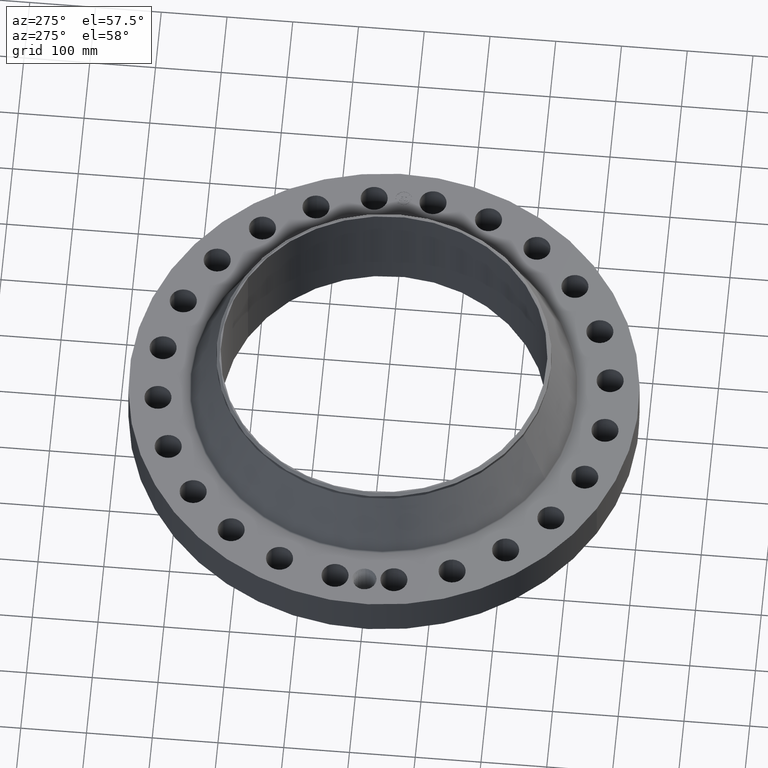
[diagram: clean part render]
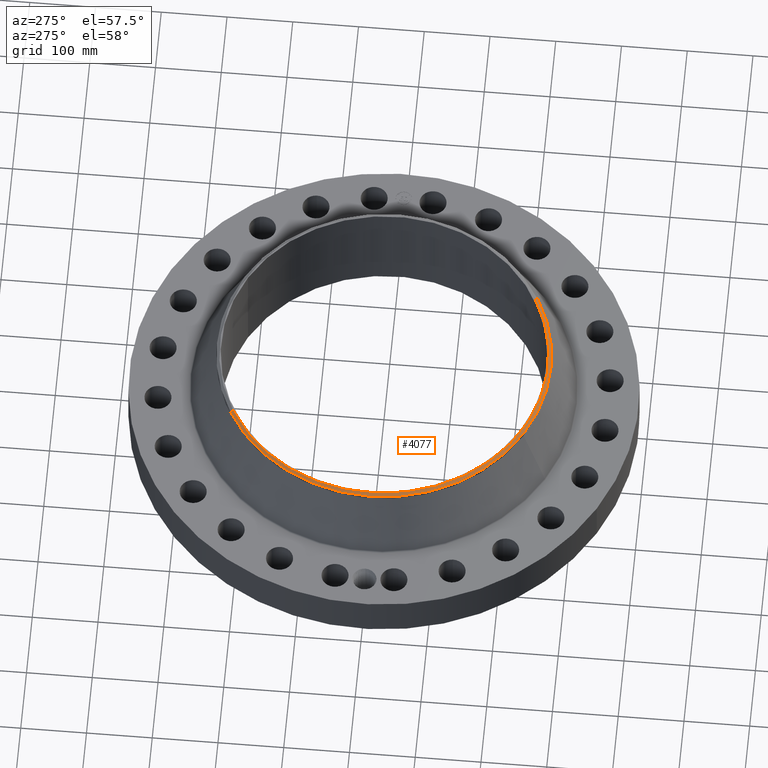
[diagram: same view with one face highlighted and labeled with its STEP entity id]
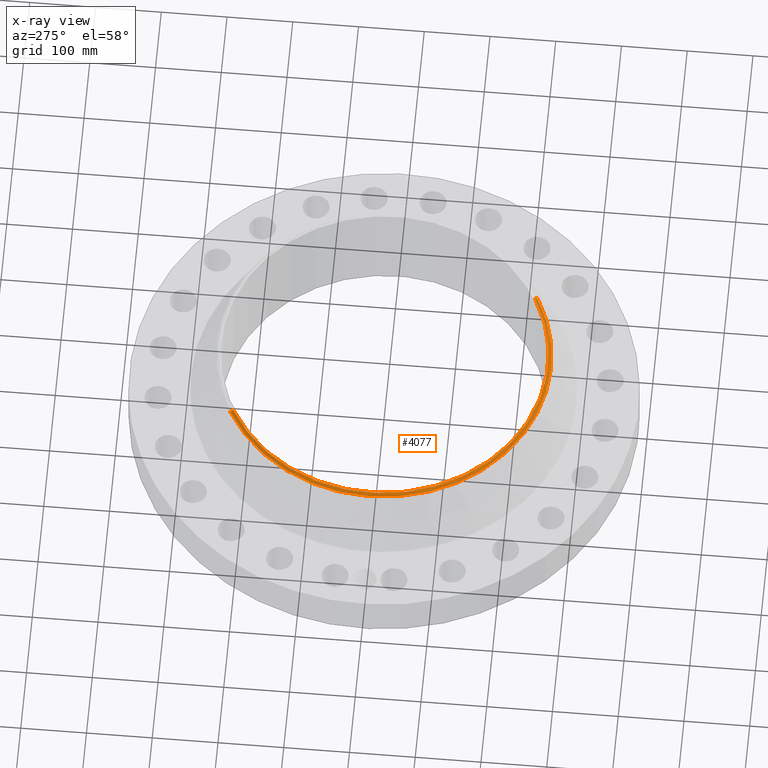
[diagram: x-ray of the same camera — body ghosted, the highlighted face saturated]
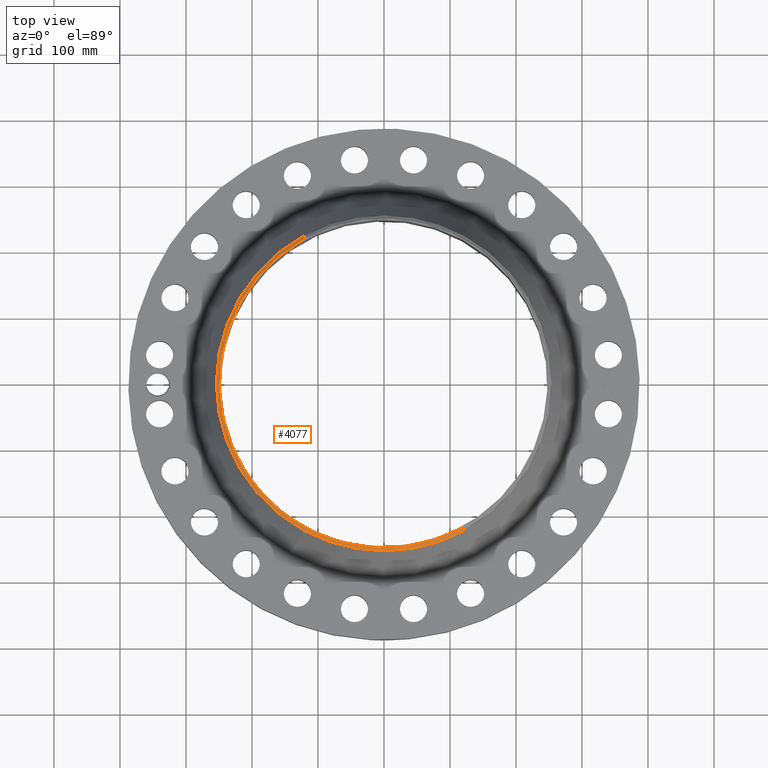
[diagram: same view with one face highlighted and labeled with its STEP entity id]
A machine part, auxiliary view. The second image highlights one B-rep face of the part: STEP entity #4077.
The next image is the same camera in x-ray: the body ghosted, the highlighted face saturated — about 0% of this face is hidden behind the body in this view.
A second angle (top view) of the same face is appended — the face is thin or edge-on in the first view.
In plain terms, the highlighted conical surface has half-angle 52.5 deg.
Its self-contained STEP definition (entity closure, byte-faithful):
#3225=AXIS2_PLACEMENT_3D('Circle Axis2P3D',#3223,#3224,$) ;
#4042=AXIS2_PLACEMENT_3D('Cone Axis2P3D',#4039,#4040,#4041) ;
#4060=AXIS2_PLACEMENT_3D('Circle Axis2P3D',#4058,#4059,$) ;
#4067=AXIS2_PLACEMENT_3D('Circle Axis2P3D',#4065,#4066,$) ;
#3218=CARTESIAN_POINT('Vertex',(4.71214904382,-8.62553096759,6.87000000003)) ;
#3220=CARTESIAN_POINT('Vertex',(-4.71214904382,8.62553096759,6.87000000003)) ;
#3223=CARTESIAN_POINT('Axis2P3D Location',(0.,0.,6.87000000003)) ;
#4039=CARTESIAN_POINT('Axis2P3D Location',(0.,0.,6.87000000003)) ;
#4044=CARTESIAN_POINT('Line Origine',(4.75320221494,-8.70067829326,6.80429385047)) ;
#4048=CARTESIAN_POINT('Vertex',(4.79425538606,-8.77582561894,6.7385877009)) ;
#4051=CARTESIAN_POINT('Line Origine',(-4.75320221494,8.70067829326,6.80429385047)) ;
#4055=CARTESIAN_POINT('Vertex',(-4.79425538606,8.77582561894,6.7385877009)) ;
#4058=CARTESIAN_POINT('Axis2P3D Location',(0.,0.,6.7385877009)) ;
#4062=CARTESIAN_POINT('Vertex',(-4.79425538606,-8.77582561894,6.7385877009)) ;
#4065=CARTESIAN_POINT('Axis2P3D Location',(0.,0.,6.7385877009)) ;
#3224=DIRECTION('Axis2P3D Direction',(0.,0.,-0.0393700787402)) ;
#4040=DIRECTION('Axis2P3D Direction',(-0.,-0.,-0.0393700787402)) ;
#4041=DIRECTION('Axis2P3D XDirection',(-0.0188750212049,0.0345504945626,0.)) ;
#4045=DIRECTION('Vector Direction',(0.014974561121,-0.02741075027,-0.023966985394)) ;
#4052=DIRECTION('Vector Direction',(-0.014974561121,0.02741075027,-0.023966985394)) ;
#4059=DIRECTION('Axis2P3D Direction',(0.,0.,-0.0393700787402)) ;
#4066=DIRECTION('Axis2P3D Direction',(0.,0.,-0.0393700787402)) ;
#4046=VECTOR('Line Direction',#4045,0.0393700787402) ;
#4053=VECTOR('Line Direction',#4052,0.0393700787402) ;
#4071=ORIENTED_EDGE('',*,*,#4050,.F.) ;
#4072=ORIENTED_EDGE('',*,*,#3227,.F.) ;
#4073=ORIENTED_EDGE('',*,*,#4057,.T.) ;
#4074=ORIENTED_EDGE('',*,*,#4064,.T.) ;
#4075=ORIENTED_EDGE('',*,*,#4069,.F.) ;
#4077=ADVANCED_FACE('PartBody',(#4076),#4043,.T.) ;
#3226=CIRCLE('generated circle',#3225,9.82874015752) ;
#4061=CIRCLE('generated circle',#4060,10.) ;
#4068=CIRCLE('generated circle',#4067,10.) ;
#4043=CONICAL_SURFACE('Cone',#4042,9.82874015752,0.916297857297) ;
#3227=EDGE_CURVE('',#3221,#3219,#3226,.F.) ;
#4050=EDGE_CURVE('',#3219,#4049,#4047,.T.) ;
#4057=EDGE_CURVE('',#3221,#4056,#4054,.T.) ;
#4064=EDGE_CURVE('',#4056,#4063,#4061,.F.) ;
#4069=EDGE_CURVE('',#4049,#4063,#4068,.T.) ;
#4070=EDGE_LOOP('',(#4071,#4072,#4073,#4074,#4075)) ;
#4076=FACE_OUTER_BOUND('',#4070,.T.) ;
#4047=LINE('Line',#4044,#4046) ;
#4054=LINE('Line',#4051,#4053) ;
#3219=VERTEX_POINT('',#3218) ;
#3221=VERTEX_POINT('',#3220) ;
#4049=VERTEX_POINT('',#4048) ;
#4056=VERTEX_POINT('',#4055) ;
#4063=VERTEX_POINT('',#4062) ;